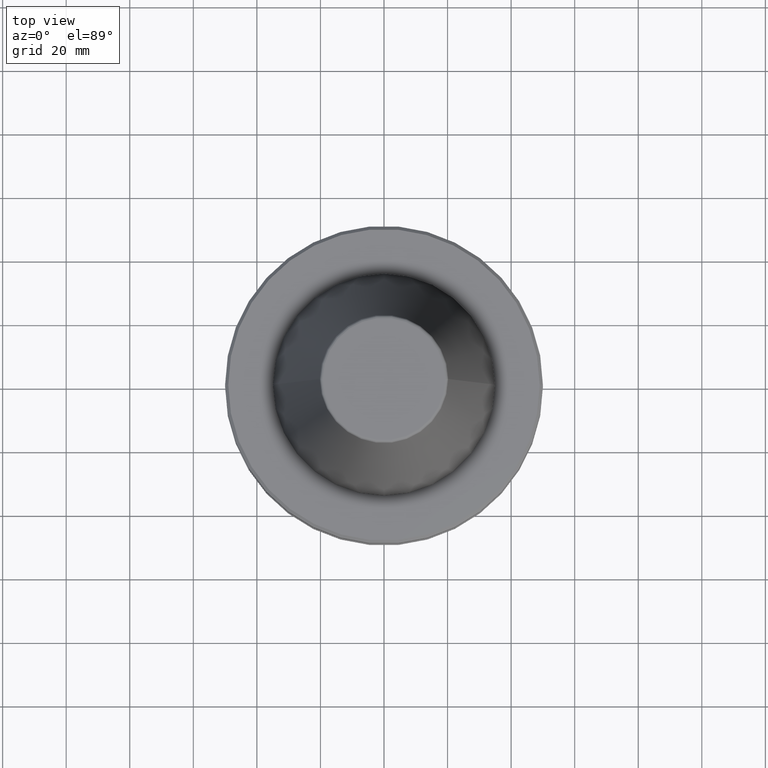
[diagram: clean part render]
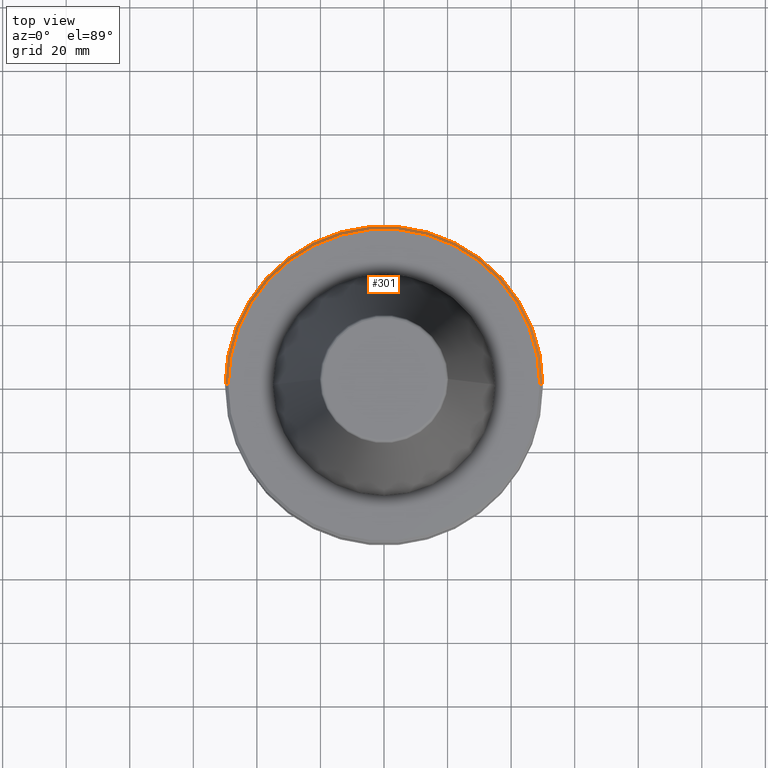
[diagram: same view with one face highlighted and labeled with its STEP entity id]
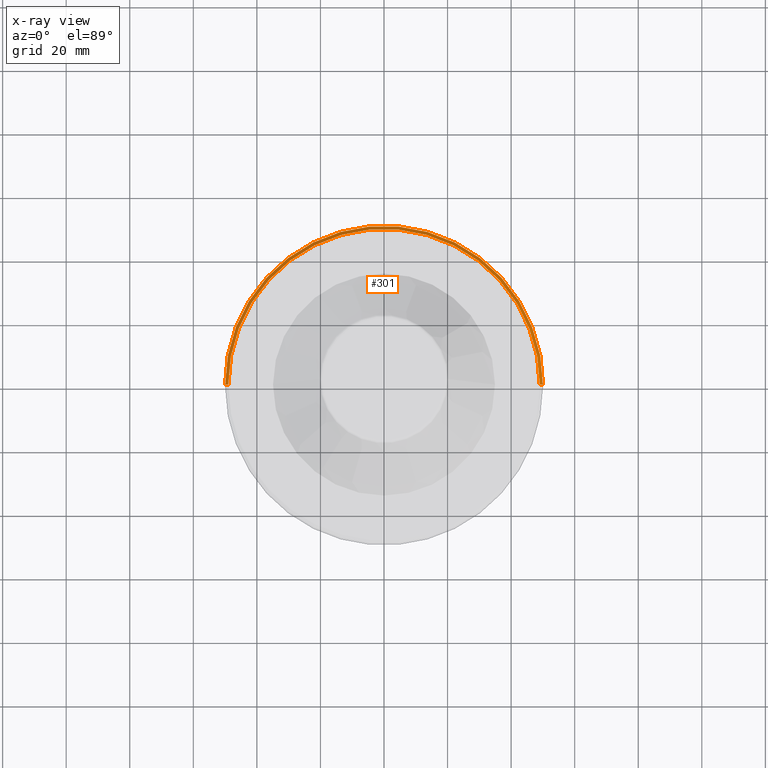
[diagram: x-ray of the same camera — body ghosted, the highlighted face saturated]
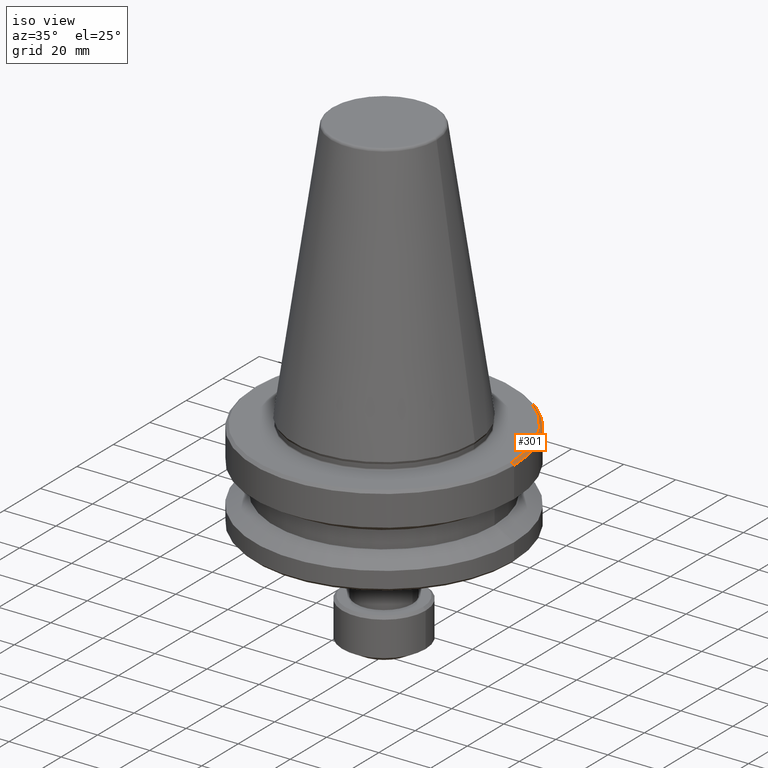
[diagram: same view with one face highlighted and labeled with its STEP entity id]
A machine part, top view. The second image highlights one B-rep face of the part: STEP entity #301.
The next image is the same camera in x-ray: the body ghosted, the highlighted face saturated — about 0% of this face is hidden behind the body in this view.
A second angle (iso view) of the same face is appended — the face is thin or edge-on in the first view.
In plain terms, the highlighted conical surface has half-angle 45 deg.
Its self-contained STEP definition (entity closure, byte-faithful):
#9 = CARTESIAN_POINT ( 'NONE',  ( 0.0000000000000000000, 0.0000000000000000000, -3.000000000000058200 ) ) ;
#11 = CARTESIAN_POINT ( 'NONE',  ( 0.0000000000000000000, 0.0000000000000000000, -3.000000000000058200 ) ) ;
#30 = ORIENTED_EDGE ( 'NONE', *, *, #458, .T. ) ;
#37 = VECTOR ( 'NONE', #224, 1000.000000000000000 ) ;
#41 = DIRECTION ( 'NONE',  ( -1.000000000000000000, 0.0000000000000000000, 0.0000000000000000000 ) ) ;
#47 = VERTEX_POINT ( 'NONE', #729 ) ;
#58 = DIRECTION ( 'NONE',  ( 1.000000000000000000, 0.0000000000000000000, 0.0000000000000000000 ) ) ;
#82 = LINE ( 'NONE', #470, #37 ) ;
#91 = VERTEX_POINT ( 'NONE', #960 ) ;
#134 = VECTOR ( 'NONE', #615, 1000.000000000000000 ) ;
#163 = LINE ( 'NONE', #590, #134 ) ;
#178 = VERTEX_POINT ( 'NONE', #923 ) ;
#224 = DIRECTION ( 'NONE',  ( 0.7071067811865474600, 8.659560562354931600E-017, -0.7071067811865475700 ) ) ;
#301 = ADVANCED_FACE ( 'NONE', ( #507 ), #1069, .T. ) ;
#308 = DIRECTION ( 'NONE',  ( 0.0000000000000000000, 0.0000000000000000000, -1.000000000000000000 ) ) ;
#309 = ORIENTED_EDGE ( 'NONE', *, *, #937, .F. ) ;
#314 = EDGE_CURVE ( 'NONE', #593, #47, #552, .T. ) ;
#380 = CARTESIAN_POINT ( 'NONE',  ( 49.00000000000026300, 6.062001655779430900E-015, -3.000000000000058200 ) ) ;
#458 = EDGE_CURVE ( 'NONE', #91, #178, #1182, .T. ) ;
#470 = CARTESIAN_POINT ( 'NONE',  ( 49.00000000000026300, 6.000769315822062500E-015, -3.000000000000058200 ) ) ;
#484 = DIRECTION ( 'NONE',  ( 1.000000000000000000, 0.0000000000000000000, 0.0000000000000000000 ) ) ;
#507 = FACE_OUTER_BOUND ( 'NONE', #1224, .T. ) ;
#552 = CIRCLE ( 'NONE', #1140, 49.00000000000026300 ) ;
#590 = CARTESIAN_POINT ( 'NONE',  ( -49.00000000000026300, 0.0000000000000000000, -3.000000000000058200 ) ) ;
#593 = VERTEX_POINT ( 'NONE', #380 ) ;
#595 = EDGE_CURVE ( 'NONE', #593, #91, #82, .T. ) ;
#615 = DIRECTION ( 'NONE',  ( -0.7071067811865474600, 0.0000000000000000000, -0.7071067811865475700 ) ) ;
#729 = CARTESIAN_POINT ( 'NONE',  ( -49.00000000000026300, 0.0000000000000000000, -3.000000000000058200 ) ) ;
#859 = ORIENTED_EDGE ( 'NONE', *, *, #595, .T. ) ;
#892 = DIRECTION ( 'NONE',  ( -0.0000000000000000000, -0.0000000000000000000, 1.000000000000000000 ) ) ;
#923 = CARTESIAN_POINT ( 'NONE',  ( -50.00000000000027000, 6.123233995736798400E-015, -4.000000000000058600 ) ) ;
#937 = EDGE_CURVE ( 'NONE', #47, #178, #163, .T. ) ;
#960 = CARTESIAN_POINT ( 'NONE',  ( 50.00000000000027000, 0.0000000000000000000, -4.000000000000058600 ) ) ;
#964 = CARTESIAN_POINT ( 'NONE',  ( 0.0000000000000000000, 0.0000000000000000000, -4.000000000000058600 ) ) ;
#971 = DIRECTION ( 'NONE',  ( -0.0000000000000000000, -0.0000000000000000000, 1.000000000000000000 ) ) ;
#1069 = CONICAL_SURFACE ( 'NONE', #1162, 49.00000000000026300, 0.7853981633974482800 ) ;
#1090 = AXIS2_PLACEMENT_3D ( 'NONE', #964, #971, #484 ) ;
#1103 = ORIENTED_EDGE ( 'NONE', *, *, #314, .F. ) ;
#1140 = AXIS2_PLACEMENT_3D ( 'NONE', #9, #892, #58 ) ;
#1162 = AXIS2_PLACEMENT_3D ( 'NONE', #11, #308, #41 ) ;
#1182 = CIRCLE ( 'NONE', #1090, 50.00000000000027000 ) ;
#1224 = EDGE_LOOP ( 'NONE', ( #1103, #859, #30, #309 ) ) ;